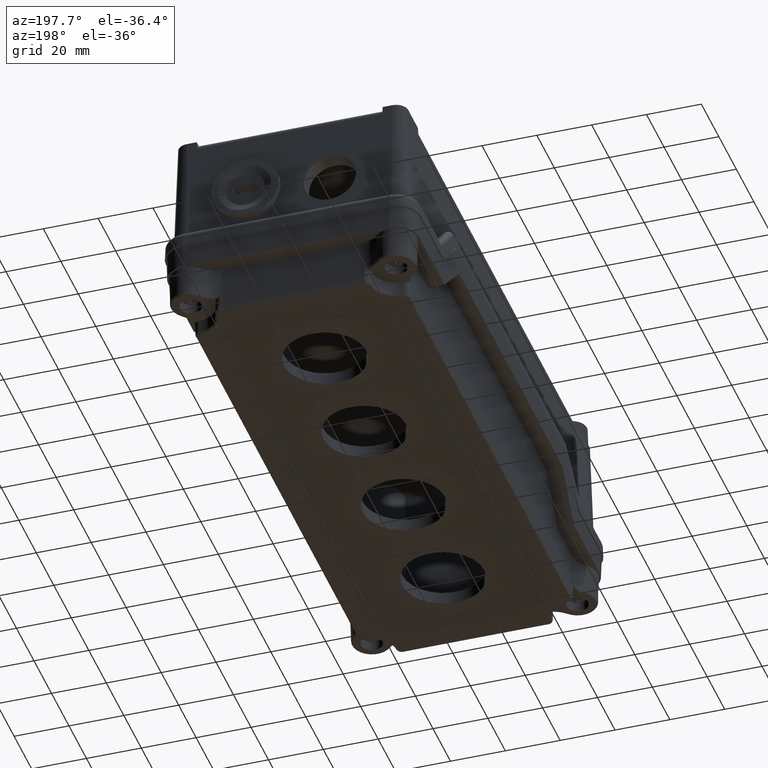
[diagram: clean part render]
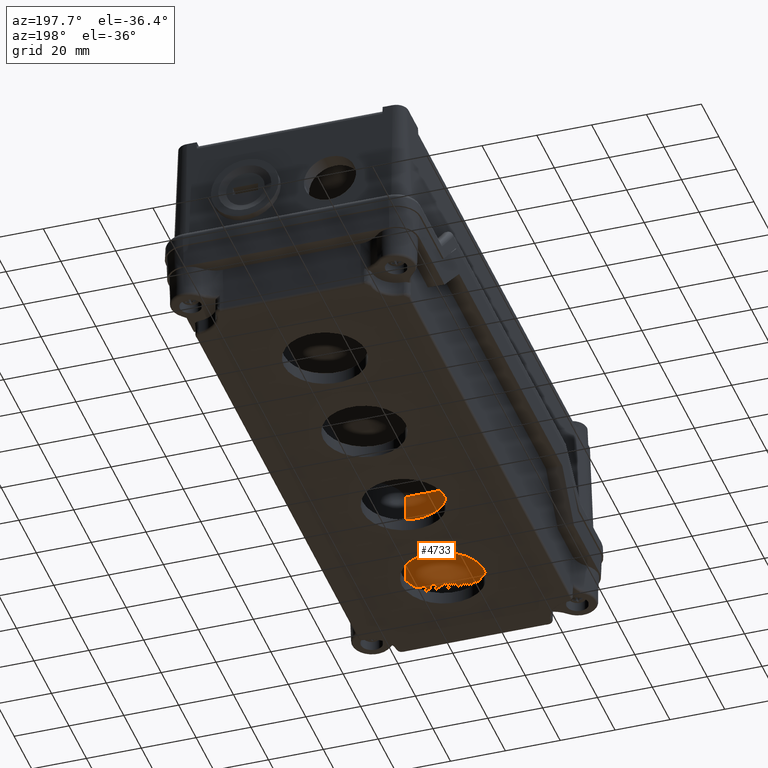
[diagram: same view with one face highlighted and labeled with its STEP entity id]
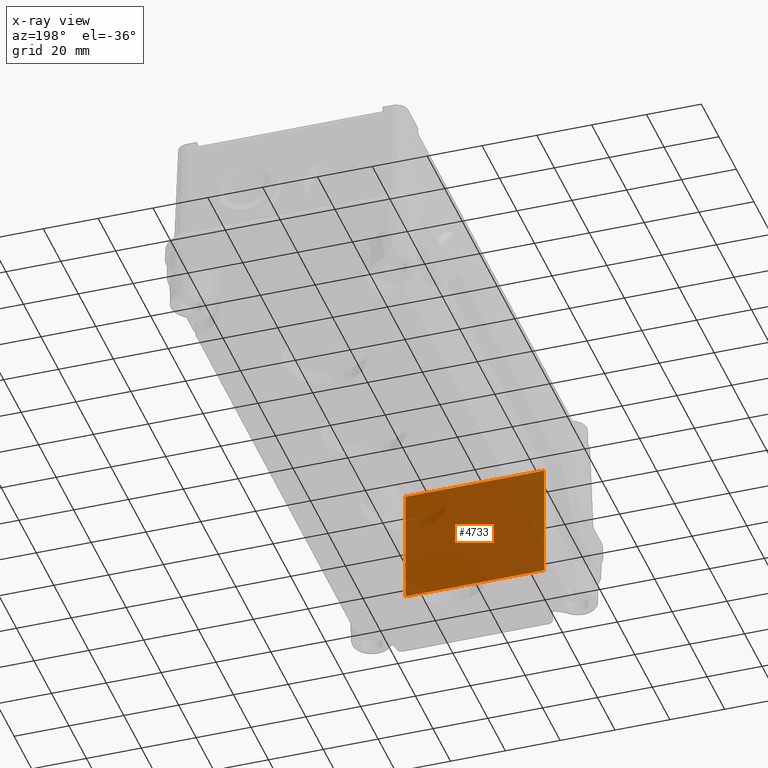
[diagram: x-ray of the same camera — body ghosted, the highlighted face saturated]
A machine part, auxiliary view. The second image highlights one B-rep face of the part: STEP entity #4733.
The next image is the same camera in x-ray: the body ghosted, the highlighted face saturated — about 77% of this face is hidden behind the body in this view.
In plain terms, the highlighted planar face has unit normal (0, -1, 0).
Its self-contained STEP definition (entity closure, byte-faithful):
#646=CARTESIAN_POINT('',(56.385091562850384,-17.400412990563620,40.0));
#647=VERTEX_POINT('',#646);
#655=CARTESIAN_POINT('',(5.885091562884437,-17.400412990563616,40.0));
#656=VERTEX_POINT('',#655);
#657=CARTESIAN_POINT('',(56.385091562850384,-17.400412990563620,40.0));
#658=DIRECTION('',(-1.0,0.0,0.0));
#659=VECTOR('',#658,50.499999999965951);
#660=LINE('',#657,#659);
#661=EDGE_CURVE('',#647,#656,#660,.T.);
#3429=CARTESIAN_POINT('',(5.885091562884428,-17.400412990563673,-2.999999999999971));
#3430=VERTEX_POINT('',#3429);
#3437=CARTESIAN_POINT('',(56.385091562850448,-17.400412990563627,-2.999999999999971));
#3438=VERTEX_POINT('',#3437);
#3439=CARTESIAN_POINT('',(56.385091562850448,-17.400412990563627,-2.999999999999971));
#3440=DIRECTION('',(-1.0,0.0,0.0));
#3441=VECTOR('',#3440,50.499999999966022);
#3442=LINE('',#3439,#3441);
#3443=EDGE_CURVE('',#3438,#3430,#3442,.T.);
#4708=CARTESIAN_POINT('',(56.385091562850448,-17.400412990563627,-2.999999999999971));
#4709=DIRECTION('',(0.0,0.0,1.0));
#4710=VECTOR('',#4709,42.999999999999972);
#4711=LINE('',#4708,#4710);
#4712=EDGE_CURVE('',#3438,#647,#4711,.T.);
#4717=CARTESIAN_POINT('',(56.385091562850384,-17.400412990563620,0.0));
#4718=DIRECTION('',(0.0,-1.0,0.0));
#4719=DIRECTION('',(0.0,0.0,-1.0));
#4720=AXIS2_PLACEMENT_3D('',#4717,#4718,#4719);
#4721=PLANE('',#4720);
#4722=ORIENTED_EDGE('',*,*,#661,.F.);
#4723=ORIENTED_EDGE('',*,*,#4712,.F.);
#4724=ORIENTED_EDGE('',*,*,#3443,.T.);
#4725=CARTESIAN_POINT('',(5.885091562884428,-17.400412990563673,-2.999999999999971));
#4726=DIRECTION('',(0.0,0.0,1.0));
#4727=VECTOR('',#4726,42.999999999999972);
#4728=LINE('',#4725,#4727);
#4729=EDGE_CURVE('',#3430,#656,#4728,.T.);
#4730=ORIENTED_EDGE('',*,*,#4729,.T.);
#4731=EDGE_LOOP('',(#4722,#4723,#4724,#4730));
#4732=FACE_OUTER_BOUND('',#4731,.T.);
#4733=ADVANCED_FACE('',(#4732),#4721,.F.);